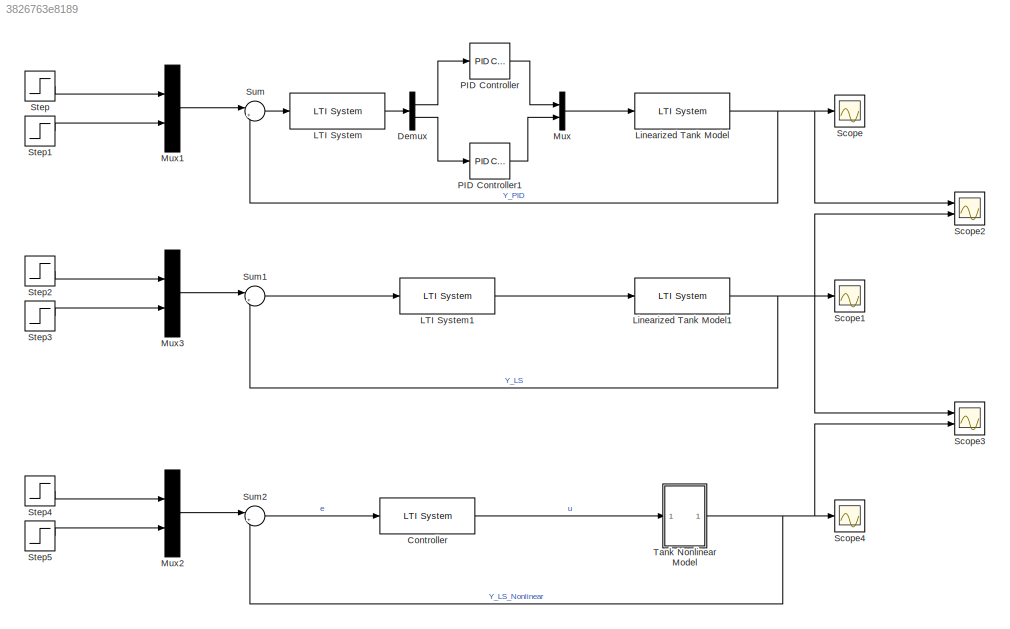
MODEL slx_3826763e8189
KIND model
CONFIG AbsTol = auto
CONFIG EnableMultiTasking = off
CONFIG FixedStep = auto
CONFIG MaxStep = auto
CONFIG MinStep = auto
CONFIG RelTol = 1e-3
CONFIG SampleTimeConstraint = Unconstrained
CONFIG SolverName = VariableStepAuto
CONFIG StartTime = 0.0
CONFIG StopTime = 20000
BLOCK [Reference] Controller  REF=cstblocks/LTI System
  Ports = [1, 1]
  SourceBlock = cstblocks/LTI System
  SourceProductBaseCode = CT
  SourceType = LTI Block
BLOCK [Demux] Demux
  Outputs = 2
  Ports = [1, 2]
BLOCK [Reference] LTI System  REF=cstblocks/LTI System
  Ports = [1, 1]
  SourceBlock = cstblocks/LTI System
  SourceProductBaseCode = CT
  SourceType = LTI Block
BLOCK [Reference] LTI System1  REF=cstblocks/LTI System
  Ports = [1, 1]
  SourceBlock = cstblocks/LTI System
  SourceProductBaseCode = CT
  SourceType = LTI Block
BLOCK [Reference] Linearized Tank Model  REF=cstblocks/LTI System
  Ports = [1, 1]
  SourceBlock = cstblocks/LTI System
  SourceProductBaseCode = CT
  SourceType = LTI Block
BLOCK [Reference] Linearized Tank Model1  REF=cstblocks/LTI System
  Ports = [1, 1]
  SourceBlock = cstblocks/LTI System
  SourceProductBaseCode = CT
  SourceType = LTI Block
BLOCK [Mux] Mux
  DisplayOption = bar
  Inputs = 2
  Ports = [2, 1]
BLOCK [Mux] Mux1
  DisplayOption = bar
  Inputs = 2
  Ports = [2, 1]
BLOCK [Mux] Mux2
  DisplayOption = bar
  Inputs = 2
  Ports = [2, 1]
BLOCK [Mux] Mux3
  DisplayOption = bar
  Inputs = 2
  Ports = [2, 1]
BLOCK [Reference] PID Controller  REF=pid_lib/PID Controller
  Ports = [1, 1]
  SourceBlock = pid_lib/PID Controller
  SourceProductBaseCode = SL
  SourceType = PID 1dof
BLOCK [Reference] PID Controller1  REF=pid_lib/PID Controller
  Ports = [1, 1]
  SourceBlock = pid_lib/PID Controller
  SourceProductBaseCode = SL
  SourceType = PID 1dof
BLOCK [Scope] Scope
  Floating = off
  NumInputPorts = 1
  Ports = [1]
  ScopeSpecificationString = Simulink.scopes.TimeScopeBlockCfg('CurrentConfiguration', extmgr.ConfigurationSet(extmgr.Configuration('Core','General UI',true),extmgr.Configuration('Core','Source UI',true),extmgr.Configuration('Sources','WiredSimulink',true),extmgr.Configuration('Visuals','Time Domain',true,'SerializedDisplays',{struct('MinYLimReal','-5.13026','MaxYLimReal','43.07215','YLabelReal','','MinYLimMag','0.00000','Max...<+1450ch>
BLOCK [Scope] Scope1
  Floating = off
  NumInputPorts = 1
  Ports = [1]
  ScopeSpecificationString = Simulink.scopes.TimeScopeBlockCfg('CurrentConfiguration', extmgr.ConfigurationSet(extmgr.Configuration('Core','General UI',true),extmgr.Configuration('Core','Source UI',true),extmgr.Configuration('Sources','WiredSimulink',true,'DataLoggingVariableName','ScopeData1'),extmgr.Configuration('Visuals','Time Domain',true,'SerializedDisplays',{struct('MinYLimReal','-2.11697','MaxYLimReal','19.05274','YLa...<+1489ch>
BLOCK [Scope] Scope2
  Floating = off
  NumInputPorts = 2
  Ports = [2]
  ScopeSpecificationString = Simulink.scopes.TimeScopeBlockCfg('CurrentConfiguration', extmgr.ConfigurationSet(extmgr.Configuration('Core','General UI',true,'FigureColor',[1 1 1]),extmgr.Configuration('Core','Source UI',true),extmgr.Configuration('Sources','WiredSimulink',true,'DataLoggingVariableName','ScopeData2'),extmgr.Configuration('Visuals','Time Domain',true,'SerializedDisplays',{struct('MinYLimReal','-5.13641','MaxYLi...<+2040ch>
BLOCK [Scope] Scope3
  Floating = off
  NumInputPorts = 2
  Ports = [2]
  ScopeSpecificationString = Simulink.scopes.TimeScopeBlockCfg('CurrentConfiguration', extmgr.ConfigurationSet(extmgr.Configuration('Core','General UI',true,'FigureColor',[1 1 1]),extmgr.Configuration('Core','Source UI',true),extmgr.Configuration('Sources','WiredSimulink',true,'DataLoggingVariableName','ScopeData3'),extmgr.Configuration('Visuals','Time Domain',true,'SerializedDisplays',{struct('MinYLimReal','-2.11722','MaxYLi...<+1758ch>
BLOCK [Scope] Scope4
  Floating = off
  NumInputPorts = 1
  Ports = [1]
  ScopeSpecificationString = Simulink.scopes.TimeScopeBlockCfg('CurrentConfiguration', extmgr.ConfigurationSet(extmgr.Configuration('Core','General UI',true),extmgr.Configuration('Core','Source UI',true),extmgr.Configuration('Sources','WiredSimulink',true,'DataLoggingVariableName','ScopeData1'),extmgr.Configuration('Visuals','Time Domain',true,'SerializedDisplays',{struct('MinYLimReal','-2.11697','MaxYLimReal','19.05274','YLa...<+1473ch>
BLOCK [Step] Step
  After = h1o
  SampleTime = 0
  Time = 0
BLOCK [Step] Step1
  After = h2o
  SampleTime = 0
  Time = 0
BLOCK [Step] Step2
  After = h1o
  SampleTime = 0
  Time = 0
BLOCK [Step] Step3
  After = h2o
  SampleTime = 0
  Time = 0
BLOCK [Step] Step4
  After = h1o
  SampleTime = 0
  Time = 0
BLOCK [Step] Step5
  After = h2o
  SampleTime = 0
  Time = 0
BLOCK [Sum] Sum
  Inputs = |+-
  Ports = [2, 1]
BLOCK [Sum] Sum1
  Inputs = |+-
  Ports = [2, 1]
BLOCK [Sum] Sum2
  Inputs = |+-
  Ports = [2, 1]
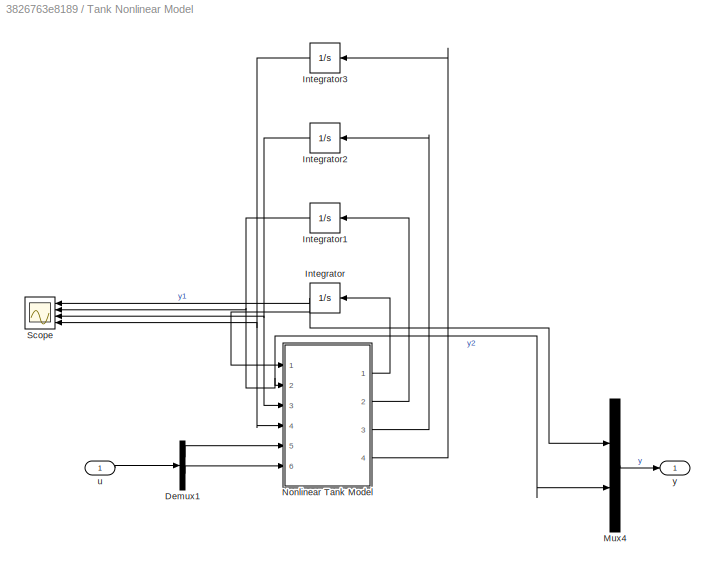
BLOCK [SubSystem] Tank Nonlinear Model
  Ports = [1, 1]
  RequestExecContextInheritance = off
BLOCK [Demux] Tank Nonlinear Model/Demux1
  Outputs = 2
  Ports = [1, 2]
BLOCK [Integrator] Tank Nonlinear Model/Integrator
  NameLocation = top
  Ports = [1, 1]
BLOCK [Integrator] Tank Nonlinear Model/Integrator1
  NameLocation = top
  Ports = [1, 1]
BLOCK [Integrator] Tank Nonlinear Model/Integrator2
  NameLocation = top
  Ports = [1, 1]
BLOCK [Integrator] Tank Nonlinear Model/Integrator3
  NameLocation = top
  Ports = [1, 1]
BLOCK [Mux] Tank Nonlinear Model/Mux4
  DisplayOption = bar
  Inputs = 2
  Ports = [2, 1]
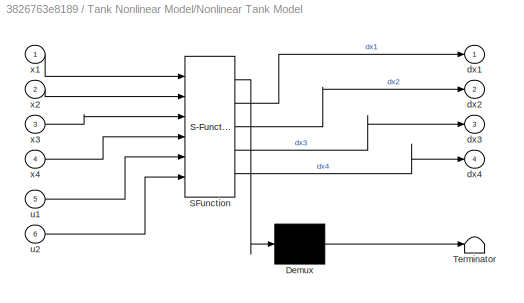
BLOCK [SubSystem] Tank Nonlinear Model/Nonlinear Tank Model
  ErrorFcn = Stateflow.Translate.translate
  PermitHierarchicalResolution = ExplicitOnly
  Ports = [6, 4]
  RequestExecContextInheritance = off
  SFBlockType = MATLAB Function
  TreatAsAtomicUnit = on
BLOCK [Demux] Tank Nonlinear Model/Nonlinear Tank Model/ Demux 
  Outputs = 1
  Ports = [1, 1]
BLOCK [S-Function] Tank Nonlinear Model/Nonlinear Tank Model/ SFunction 
  EnableBusSupport = on
  FunctionName = sf_sfun
  PortCounts = [6 5]
  Ports = [6, 5]
  SFcnIsStateOwnerBlock = off
  SFunctionDeploymentMode = off
  Tag = Stateflow S-Function 2
BLOCK [Terminator] Tank Nonlinear Model/Nonlinear Tank Model/ Terminator 
BLOCK [Outport] Tank Nonlinear Model/Nonlinear Tank Model/dx1
BLOCK [Outport] Tank Nonlinear Model/Nonlinear Tank Model/dx2
  Port = 2
BLOCK [Outport] Tank Nonlinear Model/Nonlinear Tank Model/dx3
  Port = 3
BLOCK [Outport] Tank Nonlinear Model/Nonlinear Tank Model/dx4
  Port = 4
BLOCK [Inport] Tank Nonlinear Model/Nonlinear Tank Model/u1
  Port = 5
BLOCK [Inport] Tank Nonlinear Model/Nonlinear Tank Model/u2
  Port = 6
BLOCK [Inport] Tank Nonlinear Model/Nonlinear Tank Model/x1
BLOCK [Inport] Tank Nonlinear Model/Nonlinear Tank Model/x2
  Port = 2
BLOCK [Inport] Tank Nonlinear Model/Nonlinear Tank Model/x3
  Port = 3
BLOCK [Inport] Tank Nonlinear Model/Nonlinear Tank Model/x4
  Port = 4
BLOCK [Scope] Tank Nonlinear Model/Scope
  Floating = off
  NameLocation = top
  NumInputPorts = 4
  Ports = [4]
  ScopeSpecificationString = Simulink.scopes.TimeScopeBlockCfg('CurrentConfiguration', extmgr.ConfigurationSet(extmgr.Configuration('Core','General UI',true),extmgr.Configuration('Core','Source UI',true),extmgr.Configuration('Sources','WiredSimulink',true,'DataLoggingVariableName','ScopeData1'),extmgr.Configuration('Visuals','Time Domain',true,'SerializedDisplays',{struct('MinYLimReal','-2.53884','MaxYLimReal','22.84956','YLa...<+1398ch>
BLOCK [Inport] Tank Nonlinear Model/u
BLOCK [Outport] Tank Nonlinear Model/y
LINE Controller:1 -> Tank Nonlinear Model:1
LINE Demux:1 -> PID Controller:1
LINE Demux:2 -> PID Controller1:1
LINE LTI System1:1 -> Linearized Tank Model1:1
LINE LTI System:1 -> Demux:1
NET Linearized Tank Model1:1 -> Scope1:1, Scope2:2, Scope3:1, Sum1:2
NET Linearized Tank Model:1 -> Scope2:1, Scope:1, Sum:2
LINE Mux1:1 -> Sum:1
LINE Mux2:1 -> Sum2:1
LINE Mux3:1 -> Sum1:1
LINE Mux:1 -> Linearized Tank Model:1
LINE PID Controller1:1 -> Mux:2
LINE PID Controller:1 -> Mux:1
LINE Step1:1 -> Mux1:2
LINE Step2:1 -> Mux3:1
LINE Step3:1 -> Mux3:2
LINE Step4:1 -> Mux2:1
LINE Step5:1 -> Mux2:2
LINE Step:1 -> Mux1:1
LINE Sum1:1 -> LTI System1:1
LINE Sum2:1 -> Controller:1
LINE Sum:1 -> LTI System:1
LINE Tank Nonlinear Model/Demux1:1 -> Tank Nonlinear Model/Nonlinear Tank Model:5
LINE Tank Nonlinear Model/Demux1:2 -> Tank Nonlinear Model/Nonlinear Tank Model:6
NET Tank Nonlinear Model/Integrator1:1 -> Tank Nonlinear Model/Mux4:2, Tank Nonlinear Model/Nonlinear Tank Model:2, Tank Nonlinear Model/Scope:2
NET Tank Nonlinear Model/Integrator2:1 -> Tank Nonlinear Model/Nonlinear Tank Model:3, Tank Nonlinear Model/Scope:3
NET Tank Nonlinear Model/Integrator3:1 -> Tank Nonlinear Model/Nonlinear Tank Model:4, Tank Nonlinear Model/Scope:4
NET Tank Nonlinear Model/Integrator:1 -> Tank Nonlinear Model/Mux4:1, Tank Nonlinear Model/Nonlinear Tank Model:1, Tank Nonlinear Model/Scope:1
LINE Tank Nonlinear Model/Mux4:1 -> Tank Nonlinear Model/y:1
LINE Tank Nonlinear Model/Nonlinear Tank Model:1 -> Tank Nonlinear Model/Integrator:1
LINE Tank Nonlinear Model/Nonlinear Tank Model:2 -> Tank Nonlinear Model/Integrator1:1
LINE Tank Nonlinear Model/Nonlinear Tank Model:3 -> Tank Nonlinear Model/Integrator2:1
LINE Tank Nonlinear Model/Nonlinear Tank Model:4 -> Tank Nonlinear Model/Integrator3:1
LINE Tank Nonlinear Model/u:1 -> Tank Nonlinear Model/Demux1:1
NET Tank Nonlinear Model:1 -> Scope3:2, Scope4:1, Sum2:2
note: NET lines group one-source signal fan-out (src -> all destinations, sorted); 1:1 wires keep LINE
CHART Tank Nonlinear Model/Nonlinear Tank Model states=1 transitions=1
  STATE_LABEL 'eML_blk_kernel()'
  STATE_LABEL 'SCRIPT:\nfunction [dx1,dx2,dx3,dx4] = fcn(x1,x2,x3,x4,u1,u2)\n\ng = 9.81; % m/s^2\n\n% Nominal Levels of height of waters in the Tanks\nh1o = 16.3; %cm \nh2o = 13.7; %cm \nh3o = 6.0; %cm \nh4o = 8.1; %cm \n\n% Ratio of flow 1-4 \ngam1 = 0.3;\n% Ratio of flow 2-3\ngam2 = 0.3;\n\n% Tank Area\nA1 = 730; % cm^2\nA2 = 730; % cm^2\nA3 = 730; % cm^2\nA4 = 730; % cm^2\n\n% Drain Area\na1 = 2.05; % cm^2\na2 = 2.26; % cm^2\na3 = 2....<+353ch>'
CHART  states=0 transitions=0
